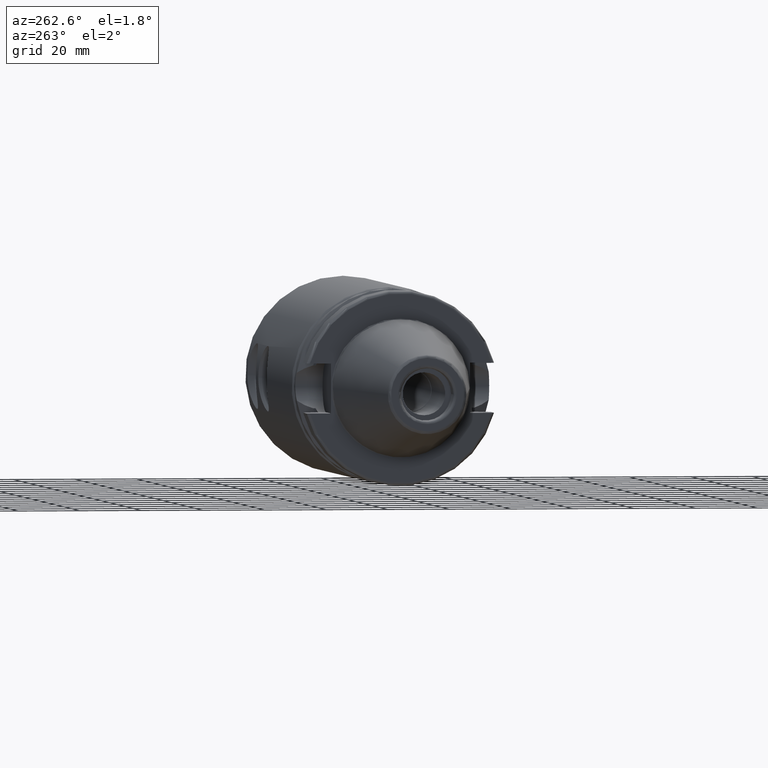
[diagram: clean part render]
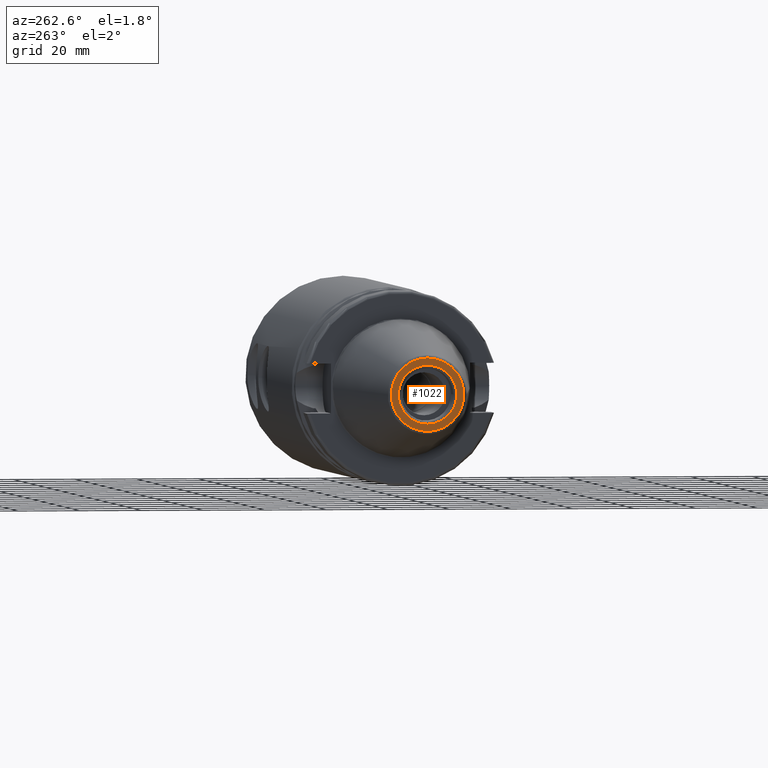
[diagram: same view with one face highlighted and labeled with its STEP entity id]
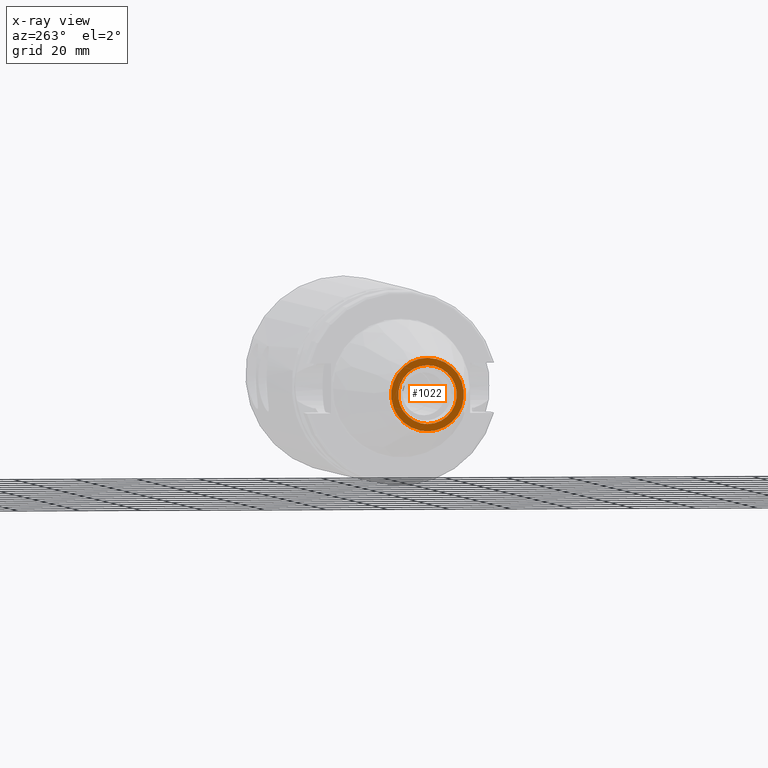
[diagram: x-ray of the same camera — body ghosted, the highlighted face saturated]
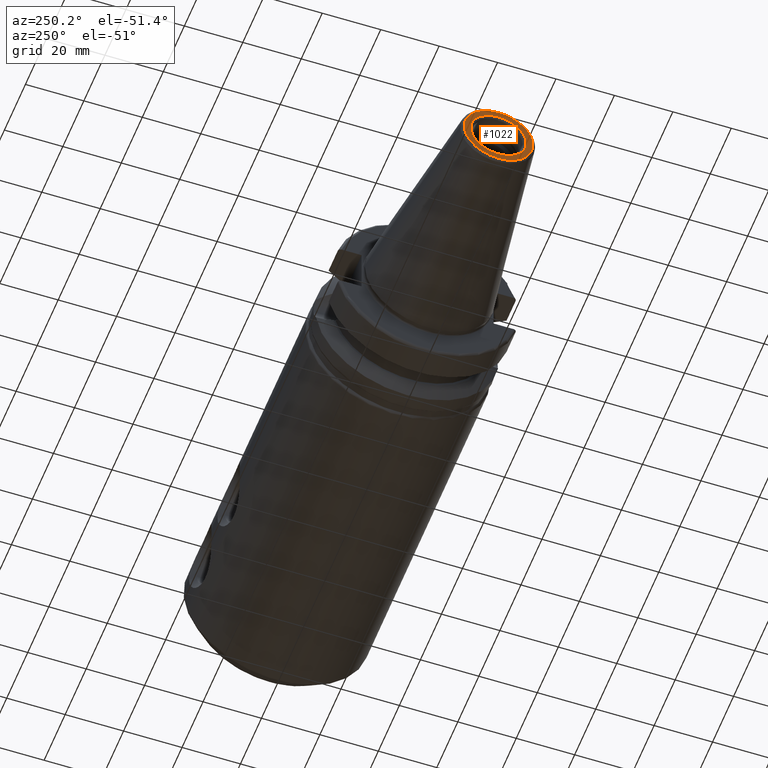
[diagram: same view with one face highlighted and labeled with its STEP entity id]
A machine part, auxiliary view. The second image highlights one B-rep face of the part: STEP entity #1022.
The next image is the same camera in x-ray: the body ghosted, the highlighted face saturated — about 0% of this face is hidden behind the body in this view.
A second angle (auxiliary view) of the same face is appended — the face is thin or edge-on in the first view.
In plain terms, the highlighted planar face has unit normal (-1, 0, 0).
Its self-contained STEP definition (entity closure, byte-faithful):
#196=FACE_BOUND('',#332,.T.);
#212=PLANE('',#1156);
#265=FACE_OUTER_BOUND('',#331,.T.);
#331=EDGE_LOOP('',(#926));
#332=EDGE_LOOP('',(#927));
#393=CIRCLE('',#1154,9.5);
#395=CIRCLE('',#1157,11.8227555970304);
#496=VERTEX_POINT('',#2430);
#497=VERTEX_POINT('',#2434);
#642=EDGE_CURVE('',#496,#496,#393,.T.);
#644=EDGE_CURVE('',#497,#497,#395,.T.);
#926=ORIENTED_EDGE('',*,*,#644,.F.);
#927=ORIENTED_EDGE('',*,*,#642,.T.);
#1022=ADVANCED_FACE('',(#265,#196),#212,.T.);
#1154=AXIS2_PLACEMENT_3D('',#2431,#1430,#1431);
#1156=AXIS2_PLACEMENT_3D('',#2433,#1434,#1435);
#1157=AXIS2_PLACEMENT_3D('',#2435,#1436,#1437);
#1430=DIRECTION('center_axis',(1.,0.,0.));
#1431=DIRECTION('ref_axis',(0.,0.,-1.));
#1434=DIRECTION('center_axis',(-1.,0.,0.));
#1435=DIRECTION('ref_axis',(0.,0.,1.));
#1436=DIRECTION('center_axis',(1.,0.,0.));
#1437=DIRECTION('ref_axis',(0.,0.,-1.));
#2430=CARTESIAN_POINT('',(-65.4,-1.16341445918999E-15,9.5));
#2431=CARTESIAN_POINT('Origin',(-65.4,0.,0.));
#2433=CARTESIAN_POINT('Origin',(-65.4,11.8227555970304,0.));
#2434=CARTESIAN_POINT('',(-65.4,-1.44786997990048E-15,11.8227555970304));
#2435=CARTESIAN_POINT('Origin',(-65.4,0.,0.));